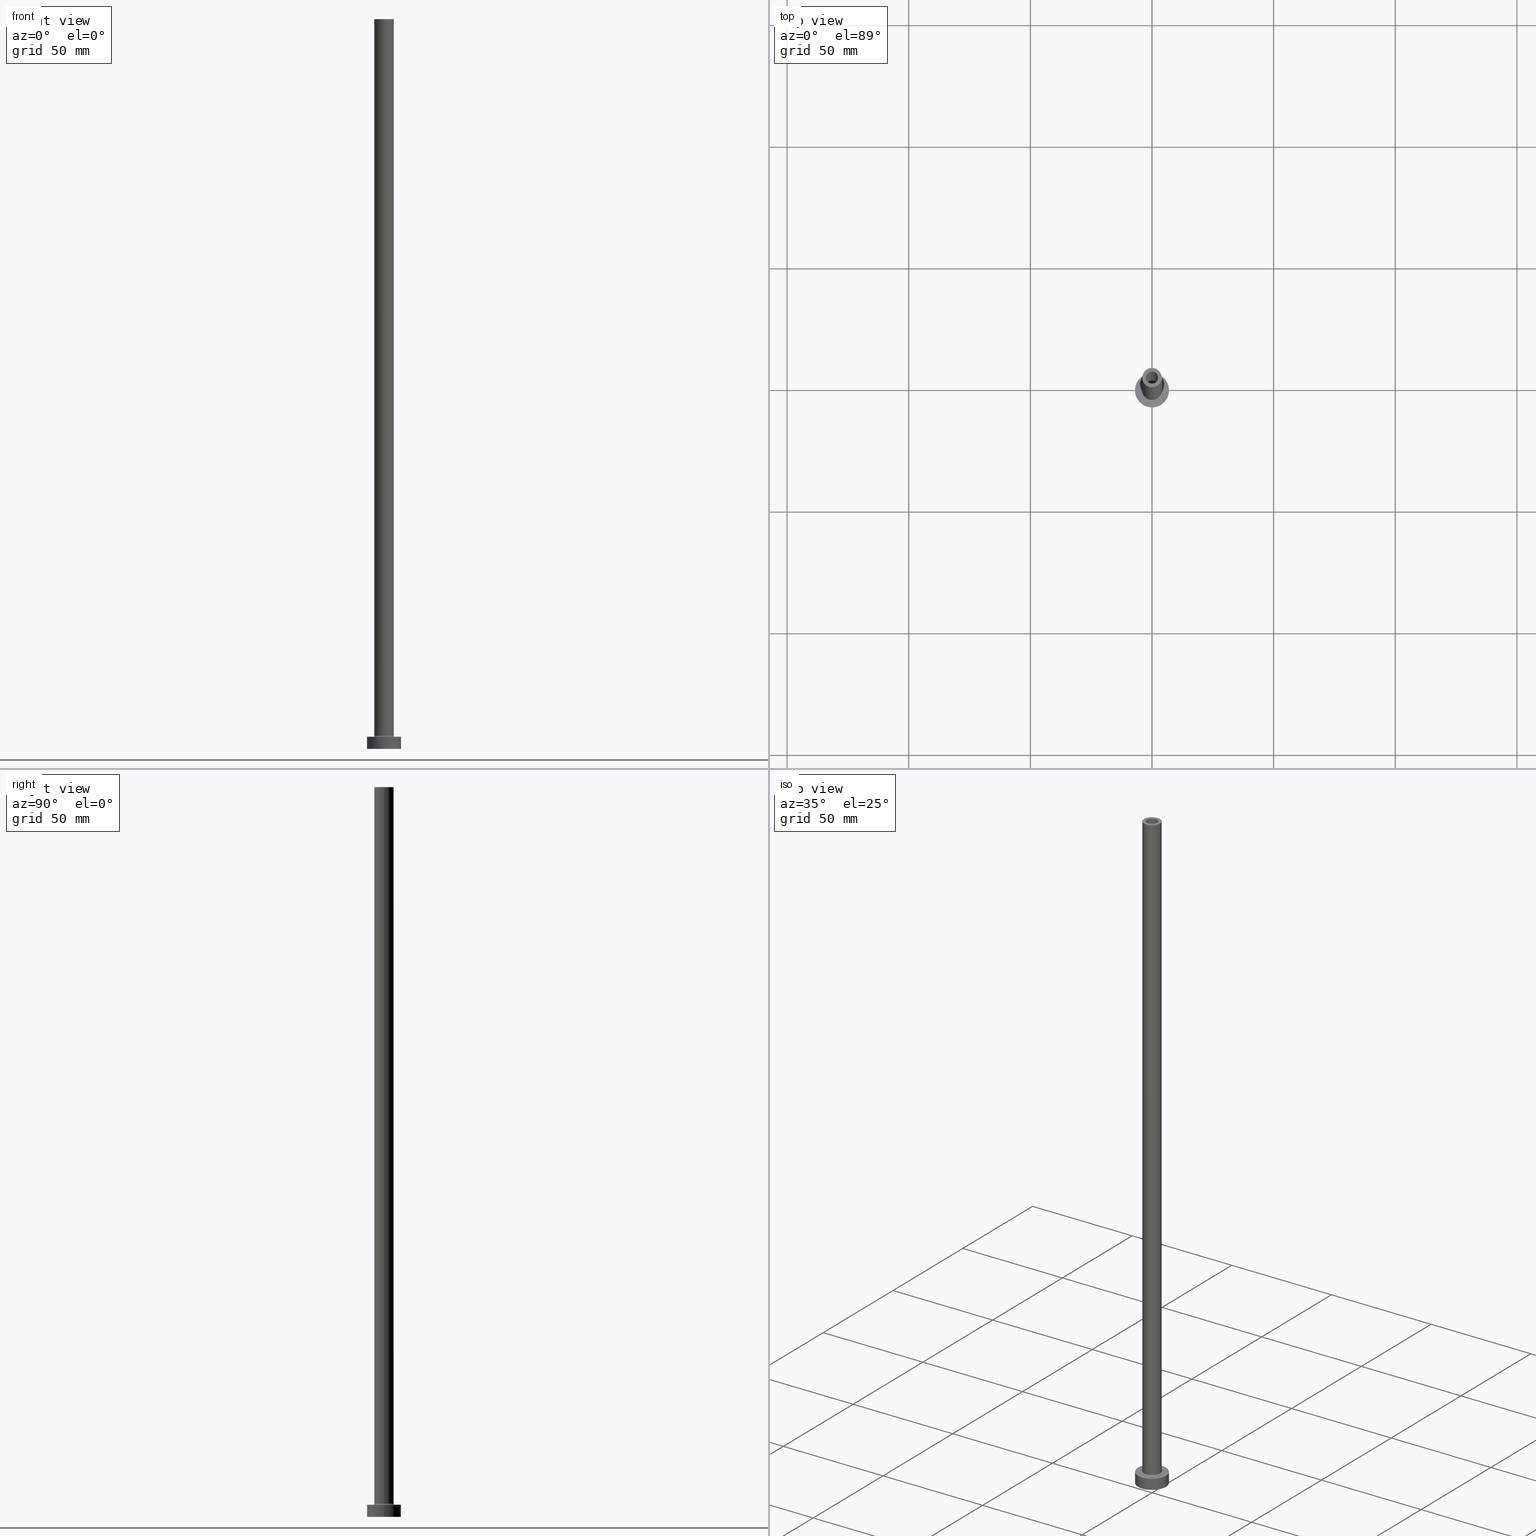
[diagram: canonical four-view strip — front | top / right | iso, engineering-drawing reading convention]
A machine part, canonical four-view strip (front | top / right | iso — engineering-drawing reading convention). The complete STEP part file that produces these views, byte-faithful:
ISO-10303-21;
HEADER;
FILE_DESCRIPTION (( 'STEP AP203' ),
    '1' );
FILE_NAME ('8be9.STEP',
    '2023-02-13T17:10:06',
    ( '' ),
    ( '' ),
    'SwSTEP 2.0',
    'SolidWorks 2019',
    '' );
FILE_SCHEMA (( 'CONFIG_CONTROL_DESIGN' ));
ENDSEC;

DATA;
#1 = CIRCLE ( 'NONE', #145, 4.000000000000000000 ) ;
#2 = AXIS2_PLACEMENT_3D ( 'NONE', #399, #84, #232 ) ;
#3 = LINE ( 'NONE', #39, #20 ) ;
#4 = FACE_BOUND ( 'NONE', #335, .T. ) ;
#5 = UNCERTAINTY_MEASURE_WITH_UNIT (LENGTH_MEASURE( 1.000000000000000082E-05 ), #345, 'distance_accuracy_value', 'NONE');
#6 = AXIS2_PLACEMENT_3D ( 'NONE', #407, #167, #302 ) ;
#7 = DATE_TIME_ROLE ( 'creation_date' ) ;
#8 = VERTEX_POINT ( 'NONE', #176 ) ;
#9 = AXIS2_PLACEMENT_3D ( 'NONE', #402, #201, #364 ) ;
#10 = SECURITY_CLASSIFICATION ( '', '', #154 ) ;
#11 = ORIENTED_EDGE ( 'NONE', *, *, #326, .T. ) ;
#12 = CARTESIAN_POINT ( 'NONE',  ( -7.000000000000000000, 0.000000000000000000, 0.000000000000000000 ) ) ;
#13 = DATE_TIME_ROLE ( 'classification_date' ) ;
#14 = EDGE_CURVE ( 'NONE', #408, #242, #246, .T. ) ;
#15 = CC_DESIGN_PERSON_AND_ORGANIZATION_ASSIGNMENT ( #260, #291, ( #10 ) ) ;
#16 = PERSON_AND_ORGANIZATION_ROLE ( 'design_owner' ) ;
#17 = CYLINDRICAL_SURFACE ( 'NONE', #341, 2.649999999999999911 ) ;
#18 = AXIS2_PLACEMENT_3D ( 'NONE', #384, #432, #429 ) ;
#19 = APPROVAL ( #150, 'NEUR�EN�' ) ;
#20 = VECTOR ( 'NONE', #180, 1000.000000000000000 ) ;
#21 = VERTEX_POINT ( 'NONE', #353 ) ;
#22 = EDGE_CURVE ( 'NONE', #304, #65, #357, .T. ) ;
#23 = ORIENTED_EDGE ( 'NONE', *, *, #373, .T. ) ;
#24 = ORIENTED_EDGE ( 'NONE', *, *, #300, .T. ) ;
#25 = CARTESIAN_POINT ( 'NONE',  ( 7.000000000000000000, 8.572527594031473190E-16, 0.000000000000000000 ) ) ;
#26 = DIRECTION ( 'NONE',  ( 1.000000000000000000, 0.000000000000000000, 0.000000000000000000 ) ) ;
#27 = CIRCLE ( 'NONE', #413, 2.500000000000000000 ) ;
#28 = ORIENTED_EDGE ( 'NONE', *, *, #403, .F. ) ;
#29 = CYLINDRICAL_SURFACE ( 'NONE', #2, 4.000000000000000000 ) ;
#30 = DIRECTION ( 'NONE',  ( 1.000000000000000000, 0.000000000000000000, 0.000000000000000000 ) ) ;
#31 = ORIENTED_EDGE ( 'NONE', *, *, #153, .T. ) ;
#32 = CYLINDRICAL_SURFACE ( 'NONE', #234, 2.649999999999999911 ) ;
#33 = ORIENTED_EDGE ( 'NONE', *, *, #358, .T. ) ;
#34 = AXIS2_PLACEMENT_3D ( 'NONE', #220, #278, #277 ) ;
#35 = FACE_OUTER_BOUND ( 'NONE', #91, .T. ) ;
#36 = DIRECTION ( 'NONE',  ( 0.000000000000000000, 0.000000000000000000, 1.000000000000000000 ) ) ;
#37 = ORIENTED_EDGE ( 'NONE', *, *, #211, .F. ) ;
#38 = APPROVAL ( #316, 'NEUR�EN�' ) ;
#39 = CARTESIAN_POINT ( 'NONE',  ( -2.500000000000000000, 0.000000000000000000, 300.0000000000000000 ) ) ;
#40 = LINE ( 'NONE', #398, #297 ) ;
#41 = APPROVAL_DATE_TIME ( #218, #416 ) ;
#42 = MECHANICAL_CONTEXT ( 'NONE', #336, 'mechanical' ) ;
#43 = CC_DESIGN_PERSON_AND_ORGANIZATION_ASSIGNMENT ( #79, #16, ( #256 ) ) ;
#44 = CALENDAR_DATE ( 2023, 13, 2 ) ;
#45 = FACE_OUTER_BOUND ( 'NONE', #385, .T. ) ;
#46 = PRODUCT_RELATED_PRODUCT_CATEGORY ( 'detail', '', ( #256 ) ) ;
#47 = VERTEX_POINT ( 'NONE', #123 ) ;
#48 = LINE ( 'NONE', #322, #334 ) ;
#49 = CIRCLE ( 'NONE', #193, 4.000000000000000000 ) ;
#50 = AXIS2_PLACEMENT_3D ( 'NONE', #213, #380, #348 ) ;
#51 = DATE_AND_TIME ( #44, #69 ) ;
#52 = VERTEX_POINT ( 'NONE', #25 ) ;
#53 = ADVANCED_FACE ( 'NONE', ( #268 ), #93, .F. ) ;
#54 = CLOSED_SHELL ( 'NONE', ( #53, #162, #117, #390, #197, #77, #179, #309, #90, #236, #459, #453, #168, #96 ) ) ;
#55 = APPROVAL_STATUS ( 'not_yet_approved' ) ;
#56 = DIRECTION ( 'NONE',  ( 1.000000000000000000, 0.000000000000000000, 0.000000000000000000 ) ) ;
#57 = EDGE_CURVE ( 'NONE', #267, #52, #229, .T. ) ;
#58 = EDGE_LOOP ( 'NONE', ( #431, #271, #308, #86 ) ) ;
#59 = DIRECTION ( 'NONE',  ( 0.000000000000000000, 0.000000000000000000, 1.000000000000000000 ) ) ;
#60 = PLANE ( 'NONE',  #9 ) ;
#61 = DIRECTION ( 'NONE',  ( 0.000000000000000000, 0.000000000000000000, 1.000000000000000000 ) ) ;
#62 = ORIENTED_EDGE ( 'NONE', *, *, #137, .F. ) ;
#63 = TOROIDAL_SURFACE ( 'NONE', #251, 4.500000000000000888, 0.5000000000000000000 ) ;
#64 = CYLINDRICAL_SURFACE ( 'NONE', #155, 7.000000000000000000 ) ;
#65 = VERTEX_POINT ( 'NONE', #195 ) ;
#66 = DIRECTION ( 'NONE',  ( 0.000000000000000000, 0.000000000000000000, 1.000000000000000000 ) ) ;
#67 = FACE_BOUND ( 'NONE', #99, .T. ) ;
#68 = CARTESIAN_POINT ( 'NONE',  ( 0.000000000000000000, 0.000000000000000000, 300.0000000000000000 ) ) ;
#69 = LOCAL_TIME ( 18, 10, 6.000000000000000000, #288 ) ;
#70 = CARTESIAN_POINT ( 'NONE',  ( -4.500000000000000888, 5.510910596163088569E-16, 5.000000000000002665 ) ) ;
#71 = PLANE ( 'NONE',  #182 ) ;
#72 = ORIENTED_EDGE ( 'NONE', *, *, #425, .T. ) ;
#73 = FACE_OUTER_BOUND ( 'NONE', #438, .T. ) ;
#74 = DIRECTION ( 'NONE',  ( 1.000000000000000000, 0.000000000000000000, -0.000000000000000000 ) ) ;
#75 = ORIENTED_EDGE ( 'NONE', *, *, #248, .F. ) ;
#76 = DIRECTION ( 'NONE',  ( -0.000000000000000000, -0.000000000000000000, -1.000000000000000000 ) ) ;
#77 = ADVANCED_FACE ( 'NONE', ( #312 ), #129, .T. ) ;
#78 = DIRECTION ( 'NONE',  ( 0.000000000000000000, 0.000000000000000000, 1.000000000000000000 ) ) ;
#79 = PERSON_AND_ORGANIZATION ( #366, #126 ) ;
#80 = PERSON_AND_ORGANIZATION ( #366, #126 ) ;
#81 = DIRECTION ( 'NONE',  ( 1.000000000000000000, 0.000000000000000000, 0.000000000000000000 ) ) ;
#82 = CALENDAR_DATE ( 2023, 13, 2 ) ;
#83 = COORDINATED_UNIVERSAL_TIME_OFFSET ( 1, 0, .AHEAD. ) ;
#84 = DIRECTION ( 'NONE',  ( -0.000000000000000000, -0.000000000000000000, -1.000000000000000000 ) ) ;
#85 = EDGE_CURVE ( 'NONE', #339, #269, #27, .T. ) ;
#86 = ORIENTED_EDGE ( 'NONE', *, *, #369, .T. ) ;
#87 = CIRCLE ( 'NONE', #378, 2.500000000000000000 ) ;
#88 = LOCAL_TIME ( 18, 10, 6.000000000000000000, #83 ) ;
#89 = LINE ( 'NONE', #233, #259 ) ;
#90 = ADVANCED_FACE ( 'NONE', ( #35 ), #132, .T. ) ;
#91 = EDGE_LOOP ( 'NONE', ( #148, #428, #275, #31 ) ) ;
#92 = CIRCLE ( 'NONE', #327, 0.5000000000000004441 ) ;
#93 = CYLINDRICAL_SURFACE ( 'NONE', #6, 2.500000000000000000 ) ;
#94 = DIRECTION ( 'NONE',  ( 0.000000000000000000, 0.000000000000000000, 1.000000000000000000 ) ) ;
#95 = VERTEX_POINT ( 'NONE', #315 ) ;
#96 = ADVANCED_FACE ( 'NONE', ( #250 ), #108, .F. ) ;
#97 = CARTESIAN_POINT ( 'NONE',  ( 0.000000000000000000, 0.000000000000000000, 255.0000000000000000 ) ) ;
#98 = ORIENTED_EDGE ( 'NONE', *, *, #248, .T. ) ;
#99 = EDGE_LOOP ( 'NONE', ( #23, #411 ) ) ;
#100 = PRODUCT_DEFINITION ( 'NEZN�M�', '', #270, #253 ) ;
#101 = EDGE_LOOP ( 'NONE', ( #317, #372, #343, #62 ) ) ;
#102 = AXIS2_PLACEMENT_3D ( 'NONE', #419, #360, #329 ) ;
#103 = CARTESIAN_POINT ( 'NONE',  ( -2.649999999999999911, 0.000000000000000000, 0.000000000000000000 ) ) ;
#104 = CARTESIAN_POINT ( 'NONE',  ( 0.000000000000000000, 0.000000000000000000, 300.0000000000000000 ) ) ;
#105 = PRODUCT_DEFINITION_SHAPE ( 'NONE', 'NONE',  #100 ) ;
#106 = DIRECTION ( 'NONE',  ( 0.000000000000000000, 0.000000000000000000, 1.000000000000000000 ) ) ;
#107 = EDGE_LOOP ( 'NONE', ( #240, #295 ) ) ;
#108 = CYLINDRICAL_SURFACE ( 'NONE', #263, 2.500000000000000000 ) ;
#109 = APPROVAL_ROLE ( '' ) ;
#110 = FACE_BOUND ( 'NONE', #107, .T. ) ;
#111 = CIRCLE ( 'NONE', #394, 7.000000000000000000 ) ;
#112 = AXIS2_PLACEMENT_3D ( 'NONE', #368, #59, #200 ) ;
#113 = ORIENTED_EDGE ( 'NONE', *, *, #425, .F. ) ;
#114 = EDGE_CURVE ( 'NONE', #118, #383, #344, .T. ) ;
#115 = CC_DESIGN_DATE_AND_TIME_ASSIGNMENT ( #184, #7, ( #100 ) ) ;
#116 = AXIS2_PLACEMENT_3D ( 'NONE', #338, #138, #30 ) ;
#117 = ADVANCED_FACE ( 'NONE', ( #73 ), #63, .F. ) ;
#118 = VERTEX_POINT ( 'NONE', #238 ) ;
#119 = CARTESIAN_POINT ( 'NONE',  ( 7.000000000000000000, 8.572527594031473190E-16, 5.000000000000000000 ) ) ;
#120 = MANIFOLD_SOLID_BREP ( 'Odebrat vysunut�m4', #54 ) ;
#121 = ORIENTED_EDGE ( 'NONE', *, *, #127, .F. ) ;
#122 = CARTESIAN_POINT ( 'NONE',  ( 4.000000000000000000, 4.898587196589412829E-16, 5.500000000000005329 ) ) ;
#123 = CARTESIAN_POINT ( 'NONE',  ( -2.649999999999999911, 0.000000000000000000, 255.0000000000000000 ) ) ;
#124 = CIRCLE ( 'NONE', #386, 4.500000000000000888 ) ;
#125 = FACE_OUTER_BOUND ( 'NONE', #243, .T. ) ;
#126 = ORGANIZATION ( 'NEUR�EN�', 'NEUR�EN�', '' ) ;
#127 = EDGE_CURVE ( 'NONE', #118, #408, #371, .T. ) ;
#128 = VERTEX_POINT ( 'NONE', #181 ) ;
#129 = CYLINDRICAL_SURFACE ( 'NONE', #192, 7.000000000000000000 ) ;
#130 = EDGE_CURVE ( 'NONE', #21, #449, #412, .T. ) ;
#131 = PLANE ( 'NONE',  #217 ) ;
#132 = CYLINDRICAL_SURFACE ( 'NONE', #448, 4.000000000000000000 ) ;
#133 = DIRECTION ( 'NONE',  ( 1.000000000000000000, 0.000000000000000000, 0.000000000000000000 ) ) ;
#134 = AXIS2_PLACEMENT_3D ( 'NONE', #241, #314, #347 ) ;
#135 = ORIENTED_EDGE ( 'NONE', *, *, #262, .T. ) ;
#136 = PLANE ( 'NONE',  #34 ) ;
#137 = EDGE_CURVE ( 'NONE', #95, #8, #439, .T. ) ;
#138 = DIRECTION ( 'NONE',  ( -0.000000000000000000, -0.000000000000000000, -1.000000000000000000 ) ) ;
#139 = ORIENTED_EDGE ( 'NONE', *, *, #57, .F. ) ;
#140 = PERSON_AND_ORGANIZATION ( #366, #126 ) ;
#141 = PERSON_AND_ORGANIZATION_ROLE ( 'creator' ) ;
#142 = ORIENTED_EDGE ( 'NONE', *, *, #22, .F. ) ;
#143 = EDGE_CURVE ( 'NONE', #47, #158, #48, .T. ) ;
#144 = AXIS2_PLACEMENT_3D ( 'NONE', #418, #159, #387 ) ;
#145 = AXIS2_PLACEMENT_3D ( 'NONE', #460, #313, #133 ) ;
#146 = LINE ( 'NONE', #185, #454 ) ;
#147 = APPROVAL_DATE_TIME ( #437, #19 ) ;
#148 = ORIENTED_EDGE ( 'NONE', *, *, #114, .F. ) ;
#149 = CC_DESIGN_PERSON_AND_ORGANIZATION_ASSIGNMENT ( #225, #141, ( #100 ) ) ;
#150 = APPROVAL_STATUS ( 'not_yet_approved' ) ;
#151 = ORIENTED_EDGE ( 'NONE', *, *, #130, .T. ) ;
#152 = CARTESIAN_POINT ( 'NONE',  ( -2.500000000000000000, 0.000000000000000000, 300.0000000000000000 ) ) ;
#153 = EDGE_CURVE ( 'NONE', #242, #383, #49, .T. ) ;
#154 = SECURITY_CLASSIFICATION_LEVEL ( 'unclassified' ) ;
#155 = AXIS2_PLACEMENT_3D ( 'NONE', #337, #76, #214 ) ;
#156 = APPROVAL_PERSON_ORGANIZATION ( #392, #416, #109 ) ;
#157 = CARTESIAN_POINT ( 'NONE',  ( 0.000000000000000000, 0.000000000000000000, 262.4953318805773961 ) ) ;
#158 = VERTEX_POINT ( 'NONE', #103 ) ;
#159 = DIRECTION ( 'NONE',  ( -0.000000000000000000, -0.000000000000000000, -1.000000000000000000 ) ) ;
#160 = DIRECTION ( 'NONE',  ( 0.000000000000000000, 0.000000000000000000, 1.000000000000000000 ) ) ;
#161 = FACE_OUTER_BOUND ( 'NONE', #276, .T. ) ;
#162 = ADVANCED_FACE ( 'NONE', ( #303 ), #32, .F. ) ;
#163 = CC_DESIGN_PERSON_AND_ORGANIZATION_ASSIGNMENT ( #80, #359, ( #270 ) ) ;
#164 = CIRCLE ( 'NONE', #340, 2.649999999999999911 ) ;
#165 = CC_DESIGN_SECURITY_CLASSIFICATION ( #10, ( #270 ) ) ;
#166 = VECTOR ( 'NONE', #216, 1000.000000000000000 ) ;
#167 = DIRECTION ( 'NONE',  ( 0.000000000000000000, 0.000000000000000000, -1.000000000000000000 ) ) ;
#168 = ADVANCED_FACE ( 'NONE', ( #67, #381 ), #71, .F. ) ;
#169 = ORIENTED_EDGE ( 'NONE', *, *, #300, .F. ) ;
#170 = ORIENTED_EDGE ( 'NONE', *, *, #369, .F. ) ;
#171 = DIRECTION ( 'NONE',  ( 0.000000000000000000, 0.000000000000000000, -1.000000000000000000 ) ) ;
#172 = DIRECTION ( 'NONE',  ( 1.000000000000000000, 0.000000000000000000, 0.000000000000000000 ) ) ;
#173 = EDGE_CURVE ( 'NONE', #128, #47, #361, .T. ) ;
#174 = CARTESIAN_POINT ( 'NONE',  ( 0.000000000000000000, 0.000000000000000000, 300.0000000000000000 ) ) ;
#175 = DIRECTION ( 'NONE',  ( 1.000000000000000000, 0.000000000000000000, 0.000000000000000000 ) ) ;
#176 = CARTESIAN_POINT ( 'NONE',  ( -2.500000000000000000, 0.000000000000000000, 255.0000000000000000 ) ) ;
#177 = DIRECTION ( 'NONE',  ( -1.000000000000000000, 0.000000000000000000, 0.000000000000000000 ) ) ;
#178 = CARTESIAN_POINT ( 'NONE',  ( 0.000000000000000000, 0.000000000000000000, 255.0000000000000000 ) ) ;
#179 = ADVANCED_FACE ( 'NONE', ( #4, #457 ), #131, .T. ) ;
#180 = DIRECTION ( 'NONE',  ( 0.000000000000000000, 0.000000000000000000, -1.000000000000000000 ) ) ;
#181 = CARTESIAN_POINT ( 'NONE',  ( 2.649999999999999911, 3.245314017740485962E-16, 255.0000000000000000 ) ) ;
#182 = AXIS2_PLACEMENT_3D ( 'NONE', #178, #206, #74 ) ;
#183 = DIRECTION ( 'NONE',  ( -1.000000000000000000, 0.000000000000000000, 0.000000000000000000 ) ) ;
#184 = DATE_AND_TIME ( #318, #320 ) ;
#185 = CARTESIAN_POINT ( 'NONE',  ( 2.649999999999999911, 3.245314017740485962E-16, 262.4953318805773961 ) ) ;
#186 = EDGE_CURVE ( 'NONE', #304, #52, #210, .T. ) ;
#187 = ORIENTED_EDGE ( 'NONE', *, *, #382, .T. ) ;
#188 = DIRECTION ( 'NONE',  ( 0.000000000000000000, 0.000000000000000000, 1.000000000000000000 ) ) ;
#189 = CALENDAR_DATE ( 2023, 13, 2 ) ;
#190 = CIRCLE ( 'NONE', #144, 2.649999999999999911 ) ;
#191 = DIRECTION ( 'NONE',  ( -1.000000000000000000, 0.000000000000000000, 0.000000000000000000 ) ) ;
#192 = AXIS2_PLACEMENT_3D ( 'NONE', #247, #377, #183 ) ;
#193 = AXIS2_PLACEMENT_3D ( 'NONE', #417, #94, #342 ) ;
#194 = ORIENTED_EDGE ( 'NONE', *, *, #333, .F. ) ;
#195 = CARTESIAN_POINT ( 'NONE',  ( -7.000000000000000000, 0.000000000000000000, 5.000000000000000000 ) ) ;
#196 = FACE_OUTER_BOUND ( 'NONE', #405, .T. ) ;
#197 = ADVANCED_FACE ( 'NONE', ( #125 ), #64, .T. ) ;
#198 = EDGE_LOOP ( 'NONE', ( #187, #406 ) ) ;
#199 = CARTESIAN_POINT ( 'NONE',  ( 2.500000000000000000, 3.061616997868382648E-16, 300.0000000000000000 ) ) ;
#200 = DIRECTION ( 'NONE',  ( 1.000000000000000000, 0.000000000000000000, 0.000000000000000000 ) ) ;
#201 = DIRECTION ( 'NONE',  ( 0.000000000000000000, 0.000000000000000000, 1.000000000000000000 ) ) ;
#202 = DIRECTION ( 'NONE',  ( 0.000000000000000000, 0.000000000000000000, 1.000000000000000000 ) ) ;
#203 = ORIENTED_EDGE ( 'NONE', *, *, #130, .F. ) ;
#204 = CARTESIAN_POINT ( 'NONE',  ( 0.000000000000000000, 0.000000000000000000, 255.0000000000000000 ) ) ;
#205 = ORIENTED_EDGE ( 'NONE', *, *, #333, .T. ) ;
#206 = DIRECTION ( 'NONE',  ( 0.000000000000000000, 0.000000000000000000, 1.000000000000000000 ) ) ;
#207 = VERTEX_POINT ( 'NONE', #389 ) ;
#208 = ORIENTED_EDGE ( 'NONE', *, *, #293, .F. ) ;
#209 = DIRECTION ( 'NONE',  ( -1.000000000000000000, 0.000000000000000000, 0.000000000000000000 ) ) ;
#210 = LINE ( 'NONE', #245, #284 ) ;
#211 = EDGE_CURVE ( 'NONE', #242, #449, #92, .T. ) ;
#212 = ORIENTED_EDGE ( 'NONE', *, *, #57, .T. ) ;
#213 = CARTESIAN_POINT ( 'NONE',  ( 4.500000000000000888, 0.000000000000000000, 5.500000000000005329 ) ) ;
#214 = DIRECTION ( 'NONE',  ( -1.000000000000000000, 0.000000000000000000, 0.000000000000000000 ) ) ;
#215 = FACE_OUTER_BOUND ( 'NONE', #58, .T. ) ;
#216 = DIRECTION ( 'NONE',  ( -0.000000000000000000, -0.000000000000000000, -1.000000000000000000 ) ) ;
#217 = AXIS2_PLACEMENT_3D ( 'NONE', #274, #452, #307 ) ;
#218 = DATE_AND_TIME ( #323, #298 ) ;
#219 = EDGE_LOOP ( 'NONE', ( #435, #11, #24, #363 ) ) ;
#220 = CARTESIAN_POINT ( 'NONE',  ( 0.000000000000000000, 0.000000000000000000, 300.0000000000000000 ) ) ;
#221 = CARTESIAN_POINT ( 'NONE',  ( 4.000000000000000000, 4.898587196589412829E-16, 300.0000000000000000 ) ) ;
#222 = DIRECTION ( 'NONE',  ( 1.000000000000000000, 0.000000000000000000, 0.000000000000000000 ) ) ;
#223 = SHAPE_DEFINITION_REPRESENTATION ( #105, #281 ) ;
#224 = DIRECTION ( 'NONE',  ( -1.000000000000000000, 1.224646799147351482E-16, 0.000000000000000000 ) ) ;
#225 = PERSON_AND_ORGANIZATION ( #366, #126 ) ;
#226 = ORIENTED_EDGE ( 'NONE', *, *, #153, .F. ) ;
#227 = DIRECTION ( 'NONE',  ( 0.000000000000000000, 0.000000000000000000, 1.000000000000000000 ) ) ;
#228 = LOCAL_TIME ( 18, 10, 6.000000000000000000, #365 ) ;
#229 = CIRCLE ( 'NONE', #379, 7.000000000000000000 ) ;
#230 = PERSON_AND_ORGANIZATION ( #366, #126 ) ;
#231 = EDGE_CURVE ( 'NONE', #408, #118, #249, .T. ) ;
#232 = DIRECTION ( 'NONE',  ( -1.000000000000000000, 0.000000000000000000, 0.000000000000000000 ) ) ;
#233 = CARTESIAN_POINT ( 'NONE',  ( 2.500000000000000000, 3.061616997868382648E-16, 300.0000000000000000 ) ) ;
#234 = AXIS2_PLACEMENT_3D ( 'NONE', #310, #171, #252 ) ;
#235 = CC_DESIGN_APPROVAL ( #38, ( #270 ) ) ;
#236 = ADVANCED_FACE ( 'NONE', ( #110, #45 ), #136, .T. ) ;
#237 = DIRECTION ( 'NONE',  ( 1.000000000000000000, 0.000000000000000000, 0.000000000000000000 ) ) ;
#238 = CARTESIAN_POINT ( 'NONE',  ( 4.000000000000000000, 4.898587196589412829E-16, 300.0000000000000000 ) ) ;
#239 = CARTESIAN_POINT ( 'NONE',  ( 0.000000000000000000, 0.000000000000000000, 5.000000000000000000 ) ) ;
#240 = ORIENTED_EDGE ( 'NONE', *, *, #262, .F. ) ;
#241 = CARTESIAN_POINT ( 'NONE',  ( 0.000000000000000000, 0.000000000000000000, 300.0000000000000000 ) ) ;
#242 = VERTEX_POINT ( 'NONE', #356 ) ;
#243 = EDGE_LOOP ( 'NONE', ( #142, #410, #455, #194 ) ) ;
#244 = DIRECTION ( 'NONE',  ( 0.000000000000000000, 0.000000000000000000, 1.000000000000000000 ) ) ;
#245 = CARTESIAN_POINT ( 'NONE',  ( 7.000000000000000000, 8.572527594031473190E-16, 5.000000000000000000 ) ) ;
#246 = LINE ( 'NONE', #376, #166 ) ;
#247 = CARTESIAN_POINT ( 'NONE',  ( 0.000000000000000000, 0.000000000000000000, 5.000000000000000000 ) ) ;
#248 = EDGE_CURVE ( 'NONE', #449, #21, #124, .T. ) ;
#249 = CIRCLE ( 'NONE', #18, 4.000000000000000000 ) ;
#250 = FACE_OUTER_BOUND ( 'NONE', #101, .T. ) ;
#251 = AXIS2_PLACEMENT_3D ( 'NONE', #443, #160, #332 ) ;
#252 = DIRECTION ( 'NONE',  ( -1.000000000000000000, 0.000000000000000000, 0.000000000000000000 ) ) ;
#253 = DESIGN_CONTEXT ( 'detailed design', #273, 'design' ) ;
#254 = CC_DESIGN_DATE_AND_TIME_ASSIGNMENT ( #51, #13, ( #10 ) ) ;
#255 = ORIENTED_EDGE ( 'NONE', *, *, #231, .T. ) ;
#256 = PRODUCT ( '8be9', '8be9', '', ( #42 ) ) ;
#257 = APPLICATION_PROTOCOL_DEFINITION ( 'international standard', 'config_control_design', 1994, #273 ) ;
#258 = APPLICATION_PROTOCOL_DEFINITION ( 'international standard', 'config_control_design', 1994, #336 ) ;
#259 = VECTOR ( 'NONE', #301, 1000.000000000000000 ) ;
#260 = PERSON_AND_ORGANIZATION ( #366, #126 ) ;
#261 = EDGE_LOOP ( 'NONE', ( #135, #33, #420, #305 ) ) ;
#262 = EDGE_CURVE ( 'NONE', #269, #339, #87, .T. ) ;
#263 = AXIS2_PLACEMENT_3D ( 'NONE', #174, #427, #177 ) ;
#264 = CARTESIAN_POINT ( 'NONE',  ( 0.000000000000000000, 0.000000000000000000, 0.000000000000000000 ) ) ;
#265 = CIRCLE ( 'NONE', #367, 2.500000000000000000 ) ;
#266 = AXIS2_PLACEMENT_3D ( 'NONE', #393, #188, #436 ) ;
#267 = VERTEX_POINT ( 'NONE', #12 ) ;
#268 = FACE_OUTER_BOUND ( 'NONE', #261, .T. ) ;
#269 = VERTEX_POINT ( 'NONE', #152 ) ;
#270 = PRODUCT_DEFINITION_FORMATION_WITH_SPECIFIED_SOURCE ( 'LIBOVOLN�', '', #256, .NOT_KNOWN. ) ;
#271 = ORIENTED_EDGE ( 'NONE', *, *, #173, .T. ) ;
#272 = DIRECTION ( 'NONE',  ( 0.000000000000000000, 0.000000000000000000, -1.000000000000000000 ) ) ;
#273 = APPLICATION_CONTEXT ( 'configuration controlled 3d designs of mechanical parts and assemblies' ) ;
#274 = CARTESIAN_POINT ( 'NONE',  ( 0.000000000000000000, 0.000000000000000000, 5.000000000000000000 ) ) ;
#275 = ORIENTED_EDGE ( 'NONE', *, *, #14, .T. ) ;
#276 = EDGE_LOOP ( 'NONE', ( #139, #450 ) ) ;
#277 = DIRECTION ( 'NONE',  ( 1.000000000000000000, 0.000000000000000000, -0.000000000000000000 ) ) ;
#278 = DIRECTION ( 'NONE',  ( 0.000000000000000000, 0.000000000000000000, 1.000000000000000000 ) ) ;
#279 = DIRECTION ( 'NONE',  ( -0.000000000000000000, -0.000000000000000000, -1.000000000000000000 ) ) ;
#280 = CARTESIAN_POINT ( 'NONE',  ( 0.000000000000000000, 0.000000000000000000, 0.000000000000000000 ) ) ;
#281 = ADVANCED_BREP_SHAPE_REPRESENTATION ( '8be9', ( #120, #287 ), #423 ) ;
#282 = CARTESIAN_POINT ( 'NONE',  ( 0.000000000000000000, 0.000000000000000000, 0.000000000000000000 ) ) ;
#283 = CARTESIAN_POINT ( 'NONE',  ( -4.500000000000000888, 5.510910596163089556E-16, 5.500000000000005329 ) ) ;
#284 = VECTOR ( 'NONE', #374, 1000.000000000000000 ) ;
#285 = DATE_AND_TIME ( #82, #88 ) ;
#286 = ORIENTED_EDGE ( 'NONE', *, *, #211, .T. ) ;
#287 = AXIS2_PLACEMENT_3D ( 'NONE', #282, #202, #415 ) ;
#288 = COORDINATED_UNIVERSAL_TIME_OFFSET ( 1, 0, .AHEAD. ) ;
#289 = EDGE_LOOP ( 'NONE', ( #355, #401, #205, #212 ) ) ;
#290 = ORIENTED_EDGE ( 'NONE', *, *, #173, .F. ) ;
#291 = PERSON_AND_ORGANIZATION_ROLE ( 'classification_officer' ) ;
#292 = APPROVAL_PERSON_ORGANIZATION ( #230, #19, #441 ) ;
#293 = EDGE_CURVE ( 'NONE', #47, #128, #164, .T. ) ;
#294 = DIRECTION ( 'NONE',  ( -0.000000000000000000, -0.000000000000000000, -1.000000000000000000 ) ) ;
#295 = ORIENTED_EDGE ( 'NONE', *, *, #85, .F. ) ;
#296 = CIRCLE ( 'NONE', #422, 7.000000000000000000 ) ;
#297 = VECTOR ( 'NONE', #294, 1000.000000000000000 ) ;
#298 = LOCAL_TIME ( 18, 10, 6.000000000000000000, #354 ) ;
#299 = EDGE_LOOP ( 'NONE', ( #121, #458, #370, #319 ) ) ;
#300 = EDGE_CURVE ( 'NONE', #207, #158, #190, .T. ) ;
#301 = DIRECTION ( 'NONE',  ( 0.000000000000000000, 0.000000000000000000, -1.000000000000000000 ) ) ;
#302 = DIRECTION ( 'NONE',  ( -1.000000000000000000, 0.000000000000000000, 0.000000000000000000 ) ) ;
#303 = FACE_OUTER_BOUND ( 'NONE', #219, .T. ) ;
#304 = VERTEX_POINT ( 'NONE', #119 ) ;
#305 = ORIENTED_EDGE ( 'NONE', *, *, #445, .F. ) ;
#306 = CIRCLE ( 'NONE', #446, 2.649999999999999911 ) ;
#307 = DIRECTION ( 'NONE',  ( 1.000000000000000000, 0.000000000000000000, -0.000000000000000000 ) ) ;
#308 = ORIENTED_EDGE ( 'NONE', *, *, #143, .T. ) ;
#309 = ADVANCED_FACE ( 'NONE', ( #330, #161 ), #60, .F. ) ;
#310 = CARTESIAN_POINT ( 'NONE',  ( 0.000000000000000000, 0.000000000000000000, 262.4953318805773961 ) ) ;
#311 = CARTESIAN_POINT ( 'NONE',  ( 0.000000000000000000, 0.000000000000000000, 5.000000000000000000 ) ) ;
#312 = FACE_OUTER_BOUND ( 'NONE', #289, .T. ) ;
#313 = DIRECTION ( 'NONE',  ( 0.000000000000000000, 0.000000000000000000, 1.000000000000000000 ) ) ;
#314 = DIRECTION ( 'NONE',  ( 0.000000000000000000, 0.000000000000000000, 1.000000000000000000 ) ) ;
#315 = CARTESIAN_POINT ( 'NONE',  ( 2.500000000000000000, 3.061616997868382648E-16, 255.0000000000000000 ) ) ;
#316 = APPROVAL_STATUS ( 'not_yet_approved' ) ;
#317 = ORIENTED_EDGE ( 'NONE', *, *, #358, .F. ) ;
#318 = CALENDAR_DATE ( 2023, 13, 2 ) ;
#319 = ORIENTED_EDGE ( 'NONE', *, *, #14, .F. ) ;
#320 = LOCAL_TIME ( 18, 10, 6.000000000000000000, #325 ) ;
#321 = EDGE_CURVE ( 'NONE', #52, #267, #111, .T. ) ;
#322 = CARTESIAN_POINT ( 'NONE',  ( -2.649999999999999911, 0.000000000000000000, 262.4953318805773961 ) ) ;
#323 = CALENDAR_DATE ( 2023, 13, 2 ) ;
#324 =( NAMED_UNIT ( * ) SI_UNIT ( $, .STERADIAN. ) SOLID_ANGLE_UNIT ( ) );
#325 = COORDINATED_UNIVERSAL_TIME_OFFSET ( 1, 0, .AHEAD. ) ;
#326 = EDGE_CURVE ( 'NONE', #128, #207, #146, .T. ) ;
#327 = AXIS2_PLACEMENT_3D ( 'NONE', #283, #349, #224 ) ;
#328 = CIRCLE ( 'NONE', #50, 0.5000000000000004441 ) ;
#329 = DIRECTION ( 'NONE',  ( 1.000000000000000000, 0.000000000000000000, 0.000000000000000000 ) ) ;
#330 = FACE_BOUND ( 'NONE', #414, .T. ) ;
#331 = DIRECTION ( 'NONE',  ( 0.000000000000000000, 0.000000000000000000, 1.000000000000000000 ) ) ;
#332 = DIRECTION ( 'NONE',  ( 1.000000000000000000, 0.000000000000000000, 0.000000000000000000 ) ) ;
#333 = EDGE_CURVE ( 'NONE', #65, #267, #40, .T. ) ;
#334 = VECTOR ( 'NONE', #272, 1000.000000000000000 ) ;
#335 = EDGE_LOOP ( 'NONE', ( #151, #98 ) ) ;
#336 = APPLICATION_CONTEXT ( 'configuration controlled 3d designs of mechanical parts and assemblies' ) ;
#337 = CARTESIAN_POINT ( 'NONE',  ( 0.000000000000000000, 0.000000000000000000, 5.000000000000000000 ) ) ;
#338 = CARTESIAN_POINT ( 'NONE',  ( 0.000000000000000000, 0.000000000000000000, 5.000000000000000000 ) ) ;
#339 = VERTEX_POINT ( 'NONE', #199 ) ;
#340 = AXIS2_PLACEMENT_3D ( 'NONE', #346, #78, #172 ) ;
#341 = AXIS2_PLACEMENT_3D ( 'NONE', #157, #442, #191 ) ;
#342 = DIRECTION ( 'NONE',  ( 1.000000000000000000, 0.000000000000000000, 0.000000000000000000 ) ) ;
#343 = ORIENTED_EDGE ( 'NONE', *, *, #445, .T. ) ;
#344 = LINE ( 'NONE', #221, #397 ) ;
#345 =( LENGTH_UNIT ( ) NAMED_UNIT ( * ) SI_UNIT ( .MILLI., .METRE. ) );
#346 = CARTESIAN_POINT ( 'NONE',  ( 0.000000000000000000, 0.000000000000000000, 255.0000000000000000 ) ) ;
#347 = DIRECTION ( 'NONE',  ( 1.000000000000000000, 0.000000000000000000, 0.000000000000000000 ) ) ;
#348 = DIRECTION ( 'NONE',  ( 0.000000000000000000, 0.000000000000000000, -1.000000000000000000 ) ) ;
#349 = DIRECTION ( 'NONE',  ( 1.224646799147353207E-16, 1.000000000000000000, -0.000000000000000000 ) ) ;
#350 = DIRECTION ( 'NONE',  ( 0.000000000000000000, 0.000000000000000000, -1.000000000000000000 ) ) ;
#351 = AXIS2_PLACEMENT_3D ( 'NONE', #97, #36, #175 ) ;
#352 = APPROVAL_PERSON_ORGANIZATION ( #388, #38, #395 ) ;
#353 = CARTESIAN_POINT ( 'NONE',  ( 4.500000000000000888, 0.000000000000000000, 5.000000000000002665 ) ) ;
#354 = COORDINATED_UNIVERSAL_TIME_OFFSET ( 1, 0, .AHEAD. ) ;
#355 = ORIENTED_EDGE ( 'NONE', *, *, #186, .F. ) ;
#356 = CARTESIAN_POINT ( 'NONE',  ( -4.000000000000000000, 0.000000000000000000, 5.500000000000005329 ) ) ;
#357 = CIRCLE ( 'NONE', #112, 7.000000000000000000 ) ;
#358 = EDGE_CURVE ( 'NONE', #339, #95, #89, .T. ) ;
#359 = PERSON_AND_ORGANIZATION_ROLE ( 'design_supplier' ) ;
#360 = DIRECTION ( 'NONE',  ( 0.000000000000000000, 0.000000000000000000, 1.000000000000000000 ) ) ;
#361 = CIRCLE ( 'NONE', #351, 2.649999999999999911 ) ;
#362 = APPROVAL_DATE_TIME ( #285, #38 ) ;
#363 = ORIENTED_EDGE ( 'NONE', *, *, #143, .F. ) ;
#364 = DIRECTION ( 'NONE',  ( 1.000000000000000000, 0.000000000000000000, -0.000000000000000000 ) ) ;
#365 = COORDINATED_UNIVERSAL_TIME_OFFSET ( 1, 0, .AHEAD. ) ;
#366 = PERSON ( 'NEUR�EN�', 'NEUR�EN�', 'NEUR�EN�', ('NEUR�EN�'), ('NEUR�EN�'), ('NEUR�EN�') ) ;
#367 = AXIS2_PLACEMENT_3D ( 'NONE', #204, #331, #56 ) ;
#368 = CARTESIAN_POINT ( 'NONE',  ( 0.000000000000000000, 0.000000000000000000, 5.000000000000000000 ) ) ;
#369 = EDGE_CURVE ( 'NONE', #158, #207, #306, .T. ) ;
#370 = ORIENTED_EDGE ( 'NONE', *, *, #403, .T. ) ;
#371 = CIRCLE ( 'NONE', #134, 4.000000000000000000 ) ;
#372 = ORIENTED_EDGE ( 'NONE', *, *, #85, .T. ) ;
#373 = EDGE_CURVE ( 'NONE', #8, #95, #265, .T. ) ;
#374 = DIRECTION ( 'NONE',  ( -0.000000000000000000, -0.000000000000000000, -1.000000000000000000 ) ) ;
#375 = EDGE_LOOP ( 'NONE', ( #208, #290 ) ) ;
#376 = CARTESIAN_POINT ( 'NONE',  ( -4.000000000000000000, 0.000000000000000000, 300.0000000000000000 ) ) ;
#377 = DIRECTION ( 'NONE',  ( -0.000000000000000000, -0.000000000000000000, -1.000000000000000000 ) ) ;
#378 = AXIS2_PLACEMENT_3D ( 'NONE', #104, #227, #396 ) ;
#379 = AXIS2_PLACEMENT_3D ( 'NONE', #451, #244, #222 ) ;
#380 = DIRECTION ( 'NONE',  ( 0.000000000000000000, -1.000000000000000000, 0.000000000000000000 ) ) ;
#381 = FACE_OUTER_BOUND ( 'NONE', #375, .T. ) ;
#382 = EDGE_CURVE ( 'NONE', #65, #304, #296, .T. ) ;
#383 = VERTEX_POINT ( 'NONE', #122 ) ;
#384 = CARTESIAN_POINT ( 'NONE',  ( 0.000000000000000000, 0.000000000000000000, 300.0000000000000000 ) ) ;
#385 = EDGE_LOOP ( 'NONE', ( #255, #400 ) ) ;
#386 = AXIS2_PLACEMENT_3D ( 'NONE', #311, #461, #426 ) ;
#387 = DIRECTION ( 'NONE',  ( 1.000000000000000000, 0.000000000000000000, 0.000000000000000000 ) ) ;
#388 = PERSON_AND_ORGANIZATION ( #366, #126 ) ;
#389 = CARTESIAN_POINT ( 'NONE',  ( 2.649999999999999911, 3.245314017740485962E-16, 0.000000000000000000 ) ) ;
#390 = ADVANCED_FACE ( 'NONE', ( #409 ), #29, .T. ) ;
#391 =( NAMED_UNIT ( * ) PLANE_ANGLE_UNIT ( ) SI_UNIT ( $, .RADIAN. ) );
#392 = PERSON_AND_ORGANIZATION ( #366, #126 ) ;
#393 = CARTESIAN_POINT ( 'NONE',  ( 0.000000000000000000, 0.000000000000000000, 5.500000000000005329 ) ) ;
#394 = AXIS2_PLACEMENT_3D ( 'NONE', #280, #106, #81 ) ;
#395 = APPROVAL_ROLE ( '' ) ;
#396 = DIRECTION ( 'NONE',  ( 1.000000000000000000, 0.000000000000000000, 0.000000000000000000 ) ) ;
#397 = VECTOR ( 'NONE', #421, 1000.000000000000000 ) ;
#398 = CARTESIAN_POINT ( 'NONE',  ( -7.000000000000000000, 0.000000000000000000, 5.000000000000000000 ) ) ;
#399 = CARTESIAN_POINT ( 'NONE',  ( 0.000000000000000000, 0.000000000000000000, 300.0000000000000000 ) ) ;
#400 = ORIENTED_EDGE ( 'NONE', *, *, #127, .T. ) ;
#401 = ORIENTED_EDGE ( 'NONE', *, *, #382, .F. ) ;
#402 = CARTESIAN_POINT ( 'NONE',  ( 0.000000000000000000, 0.000000000000000000, 0.000000000000000000 ) ) ;
#403 = EDGE_CURVE ( 'NONE', #383, #242, #1, .T. ) ;
#404 = CC_DESIGN_PERSON_AND_ORGANIZATION_ASSIGNMENT ( #140, #434, ( #270 ) ) ;
#405 = EDGE_LOOP ( 'NONE', ( #37, #28, #72, #75 ) ) ;
#406 = ORIENTED_EDGE ( 'NONE', *, *, #22, .T. ) ;
#407 = CARTESIAN_POINT ( 'NONE',  ( 0.000000000000000000, 0.000000000000000000, 300.0000000000000000 ) ) ;
#408 = VERTEX_POINT ( 'NONE', #424 ) ;
#409 = FACE_OUTER_BOUND ( 'NONE', #299, .T. ) ;
#410 = ORIENTED_EDGE ( 'NONE', *, *, #186, .T. ) ;
#411 = ORIENTED_EDGE ( 'NONE', *, *, #137, .T. ) ;
#412 = CIRCLE ( 'NONE', #116, 4.500000000000000888 ) ;
#413 = AXIS2_PLACEMENT_3D ( 'NONE', #68, #66, #456 ) ;
#414 = EDGE_LOOP ( 'NONE', ( #170, #169 ) ) ;
#415 = DIRECTION ( 'NONE',  ( 1.000000000000000000, 0.000000000000000000, 0.000000000000000000 ) ) ;
#416 = APPROVAL ( #55, 'NEUR�EN�' ) ;
#417 = CARTESIAN_POINT ( 'NONE',  ( 0.000000000000000000, 0.000000000000000000, 5.500000000000005329 ) ) ;
#418 = CARTESIAN_POINT ( 'NONE',  ( 0.000000000000000000, 0.000000000000000000, 0.000000000000000000 ) ) ;
#419 = CARTESIAN_POINT ( 'NONE',  ( 0.000000000000000000, 0.000000000000000000, 255.0000000000000000 ) ) ;
#420 = ORIENTED_EDGE ( 'NONE', *, *, #373, .F. ) ;
#421 = DIRECTION ( 'NONE',  ( -0.000000000000000000, -0.000000000000000000, -1.000000000000000000 ) ) ;
#422 = AXIS2_PLACEMENT_3D ( 'NONE', #239, #61, #26 ) ;
#423 =( GEOMETRIC_REPRESENTATION_CONTEXT ( 3 ) GLOBAL_UNCERTAINTY_ASSIGNED_CONTEXT ( ( #5 ) ) GLOBAL_UNIT_ASSIGNED_CONTEXT ( ( #345, #391, #324 ) ) REPRESENTATION_CONTEXT ( 'NONE', 'WORKASPACE' ) );
#424 = CARTESIAN_POINT ( 'NONE',  ( -4.000000000000000000, 0.000000000000000000, 300.0000000000000000 ) ) ;
#425 = EDGE_CURVE ( 'NONE', #383, #21, #328, .T. ) ;
#426 = DIRECTION ( 'NONE',  ( 1.000000000000000000, 0.000000000000000000, 0.000000000000000000 ) ) ;
#427 = DIRECTION ( 'NONE',  ( 0.000000000000000000, 0.000000000000000000, -1.000000000000000000 ) ) ;
#428 = ORIENTED_EDGE ( 'NONE', *, *, #231, .F. ) ;
#429 = DIRECTION ( 'NONE',  ( 1.000000000000000000, 0.000000000000000000, 0.000000000000000000 ) ) ;
#430 = CARTESIAN_POINT ( 'NONE',  ( 0.000000000000000000, 0.000000000000000000, 300.0000000000000000 ) ) ;
#431 = ORIENTED_EDGE ( 'NONE', *, *, #326, .F. ) ;
#432 = DIRECTION ( 'NONE',  ( 0.000000000000000000, 0.000000000000000000, 1.000000000000000000 ) ) ;
#433 = CC_DESIGN_APPROVAL ( #416, ( #100 ) ) ;
#434 = PERSON_AND_ORGANIZATION_ROLE ( 'creator' ) ;
#435 = ORIENTED_EDGE ( 'NONE', *, *, #293, .T. ) ;
#436 = DIRECTION ( 'NONE',  ( 1.000000000000000000, 0.000000000000000000, 0.000000000000000000 ) ) ;
#437 = DATE_AND_TIME ( #189, #228 ) ;
#438 = EDGE_LOOP ( 'NONE', ( #226, #286, #203, #113 ) ) ;
#439 = CIRCLE ( 'NONE', #102, 2.500000000000000000 ) ;
#440 = TOROIDAL_SURFACE ( 'NONE', #266, 4.500000000000000888, 0.5000000000000000000 ) ;
#441 = APPROVAL_ROLE ( '' ) ;
#442 = DIRECTION ( 'NONE',  ( 0.000000000000000000, 0.000000000000000000, -1.000000000000000000 ) ) ;
#443 = CARTESIAN_POINT ( 'NONE',  ( 0.000000000000000000, 0.000000000000000000, 5.500000000000005329 ) ) ;
#444 = DIRECTION ( 'NONE',  ( -0.000000000000000000, -0.000000000000000000, -1.000000000000000000 ) ) ;
#445 = EDGE_CURVE ( 'NONE', #269, #8, #3, .T. ) ;
#446 = AXIS2_PLACEMENT_3D ( 'NONE', #264, #444, #237 ) ;
#447 = CC_DESIGN_APPROVAL ( #19, ( #10 ) ) ;
#448 = AXIS2_PLACEMENT_3D ( 'NONE', #430, #279, #209 ) ;
#449 = VERTEX_POINT ( 'NONE', #70 ) ;
#450 = ORIENTED_EDGE ( 'NONE', *, *, #321, .F. ) ;
#451 = CARTESIAN_POINT ( 'NONE',  ( 0.000000000000000000, 0.000000000000000000, 0.000000000000000000 ) ) ;
#452 = DIRECTION ( 'NONE',  ( 0.000000000000000000, 0.000000000000000000, 1.000000000000000000 ) ) ;
#453 = ADVANCED_FACE ( 'NONE', ( #215 ), #17, .F. ) ;
#454 = VECTOR ( 'NONE', #350, 1000.000000000000000 ) ;
#455 = ORIENTED_EDGE ( 'NONE', *, *, #321, .T. ) ;
#456 = DIRECTION ( 'NONE',  ( 1.000000000000000000, 0.000000000000000000, 0.000000000000000000 ) ) ;
#457 = FACE_OUTER_BOUND ( 'NONE', #198, .T. ) ;
#458 = ORIENTED_EDGE ( 'NONE', *, *, #114, .T. ) ;
#459 = ADVANCED_FACE ( 'NONE', ( #196 ), #440, .F. ) ;
#460 = CARTESIAN_POINT ( 'NONE',  ( 0.000000000000000000, 0.000000000000000000, 5.500000000000005329 ) ) ;
#461 = DIRECTION ( 'NONE',  ( -0.000000000000000000, -0.000000000000000000, -1.000000000000000000 ) ) ;
ENDSEC;
END-ISO-10303-21;
